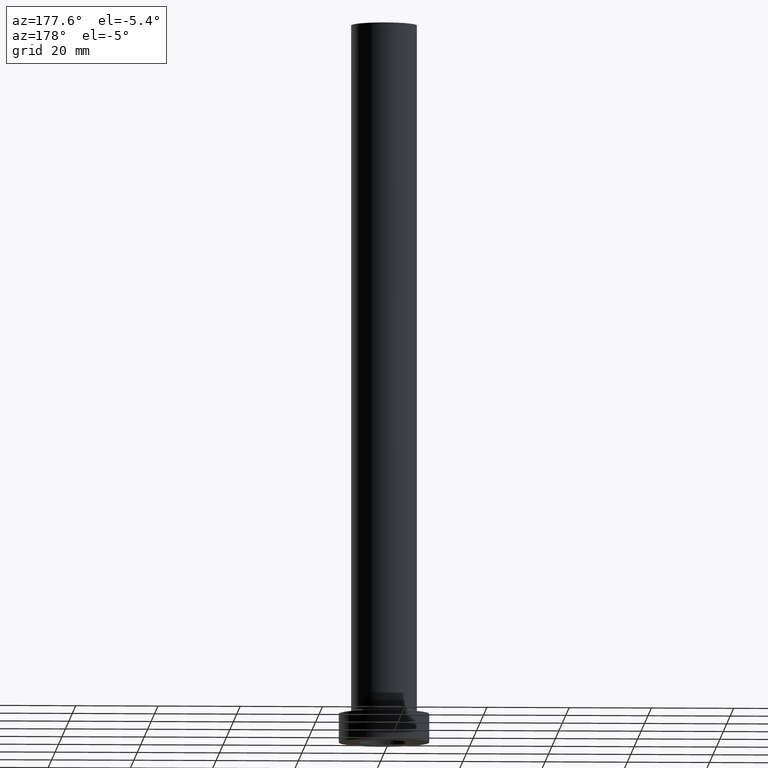
[diagram: clean part render]
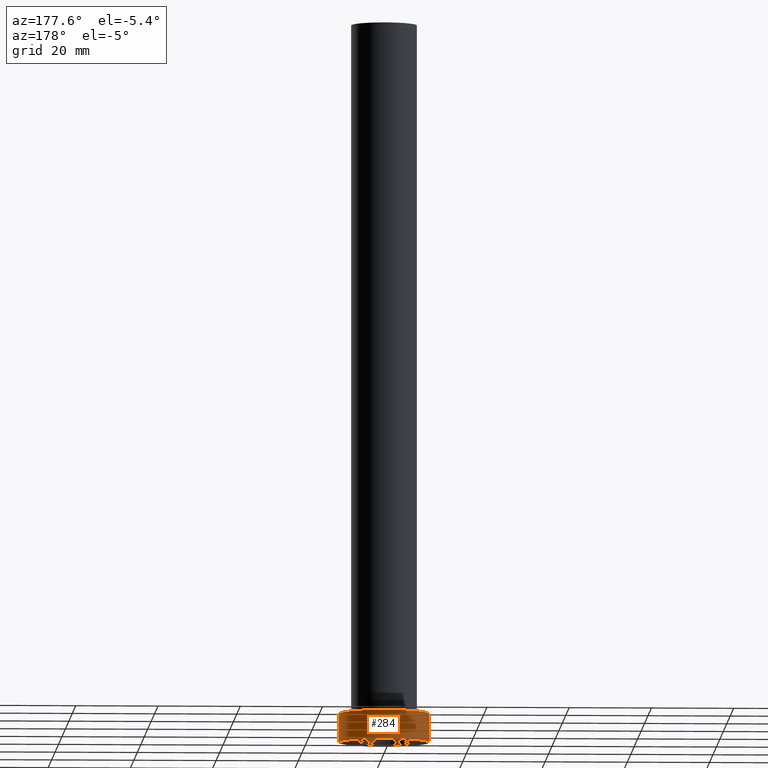
[diagram: same view with one face highlighted and labeled with its STEP entity id]
A machine part, auxiliary view. The second image highlights one B-rep face of the part: STEP entity #284.
In plain terms, the highlighted cylindrical surface (partial cylindrical patch) has radius 11 mm, axis along (-0, -0, -1).
Its self-contained STEP definition (entity closure, byte-faithful):
#12 = DIRECTION ( 'NONE',  ( 0.000000000000000000, 0.000000000000000000, 1.000000000000000000 ) ) ;
#27 = DIRECTION ( 'NONE',  ( -0.000000000000000000, -0.000000000000000000, -1.000000000000000000 ) ) ;
#54 = EDGE_CURVE ( 'NONE', #163, #155, #161, .T. ) ;
#56 = AXIS2_PLACEMENT_3D ( 'NONE', #451, #359, #97 ) ;
#82 = ORIENTED_EDGE ( 'NONE', *, *, #54, .T. ) ;
#92 = DIRECTION ( 'NONE',  ( -0.000000000000000000, -0.000000000000000000, -1.000000000000000000 ) ) ;
#97 = DIRECTION ( 'NONE',  ( 1.000000000000000000, 0.000000000000000000, 0.000000000000000000 ) ) ;
#150 = CARTESIAN_POINT ( 'NONE',  ( -11.00000000000000000, 0.000000000000000000, 0.000000000000000000 ) ) ;
#154 = VECTOR ( 'NONE', #410, 1000.000000000000000 ) ;
#155 = VERTEX_POINT ( 'NONE', #159 ) ;
#159 = CARTESIAN_POINT ( 'NONE',  ( 11.00000000000000000, 1.347111479062088405E-15, 0.000000000000000000 ) ) ;
#161 = LINE ( 'NONE', #301, #154 ) ;
#163 = VERTEX_POINT ( 'NONE', #340 ) ;
#168 = CARTESIAN_POINT ( 'NONE',  ( -11.00000000000000000, 0.000000000000000000, 7.000000000000000000 ) ) ;
#170 = CIRCLE ( 'NONE', #424, 11.00000000000000000 ) ;
#172 = FACE_OUTER_BOUND ( 'NONE', #396, .T. ) ;
#238 = EDGE_CURVE ( 'NONE', #155, #266, #372, .T. ) ;
#266 = VERTEX_POINT ( 'NONE', #150 ) ;
#278 = DIRECTION ( 'NONE',  ( 1.000000000000000000, 0.000000000000000000, 0.000000000000000000 ) ) ;
#279 = CARTESIAN_POINT ( 'NONE',  ( 0.000000000000000000, 0.000000000000000000, 7.000000000000000000 ) ) ;
#284 = ADVANCED_FACE ( 'NONE', ( #172 ), #420, .T. ) ;
#288 = CARTESIAN_POINT ( 'NONE',  ( -11.00000000000000000, 0.000000000000000000, 7.000000000000000000 ) ) ;
#290 = VECTOR ( 'NONE', #92, 1000.000000000000000 ) ;
#296 = DIRECTION ( 'NONE',  ( -1.000000000000000000, 0.000000000000000000, 0.000000000000000000 ) ) ;
#297 = AXIS2_PLACEMENT_3D ( 'NONE', #279, #27, #296 ) ;
#299 = VERTEX_POINT ( 'NONE', #288 ) ;
#301 = CARTESIAN_POINT ( 'NONE',  ( 11.00000000000000000, 1.347111479062088405E-15, 7.000000000000000000 ) ) ;
#324 = EDGE_CURVE ( 'NONE', #163, #299, #170, .T. ) ;
#340 = CARTESIAN_POINT ( 'NONE',  ( 11.00000000000000000, 1.347111479062088405E-15, 7.000000000000000000 ) ) ;
#351 = LINE ( 'NONE', #168, #290 ) ;
#352 = CARTESIAN_POINT ( 'NONE',  ( 0.000000000000000000, 0.000000000000000000, 7.000000000000000000 ) ) ;
#359 = DIRECTION ( 'NONE',  ( 0.000000000000000000, 0.000000000000000000, 1.000000000000000000 ) ) ;
#372 = CIRCLE ( 'NONE', #56, 11.00000000000000000 ) ;
#373 = ORIENTED_EDGE ( 'NONE', *, *, #429, .F. ) ;
#396 = EDGE_LOOP ( 'NONE', ( #400, #82, #433, #373 ) ) ;
#400 = ORIENTED_EDGE ( 'NONE', *, *, #324, .F. ) ;
#410 = DIRECTION ( 'NONE',  ( -0.000000000000000000, -0.000000000000000000, -1.000000000000000000 ) ) ;
#420 = CYLINDRICAL_SURFACE ( 'NONE', #297, 11.00000000000000000 ) ;
#424 = AXIS2_PLACEMENT_3D ( 'NONE', #352, #12, #278 ) ;
#429 = EDGE_CURVE ( 'NONE', #299, #266, #351, .T. ) ;
#433 = ORIENTED_EDGE ( 'NONE', *, *, #238, .T. ) ;
#451 = CARTESIAN_POINT ( 'NONE',  ( 0.000000000000000000, 0.000000000000000000, 0.000000000000000000 ) ) ;